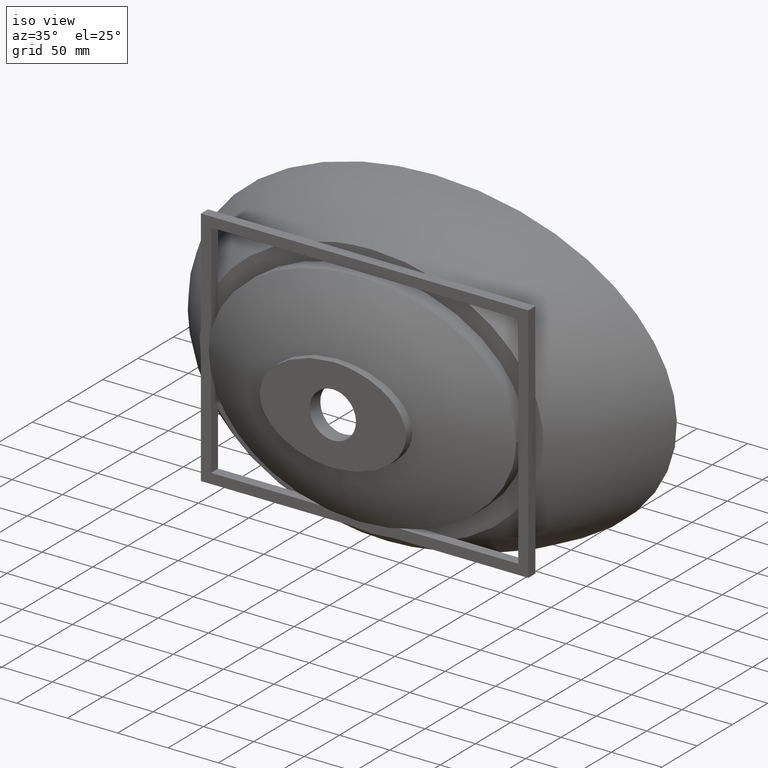
[diagram: clean part render]
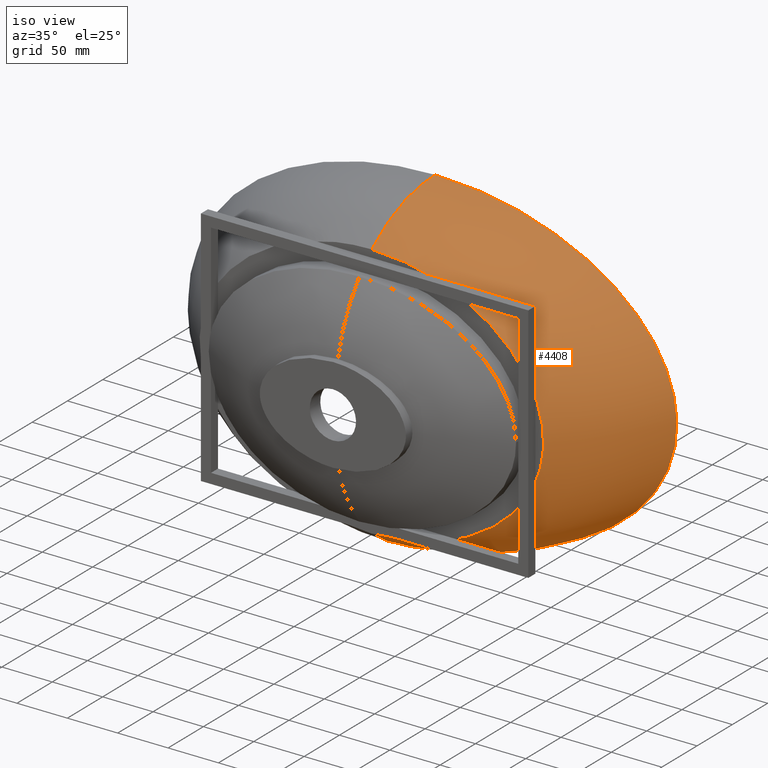
[diagram: same view with one face highlighted and labeled with its STEP entity id]
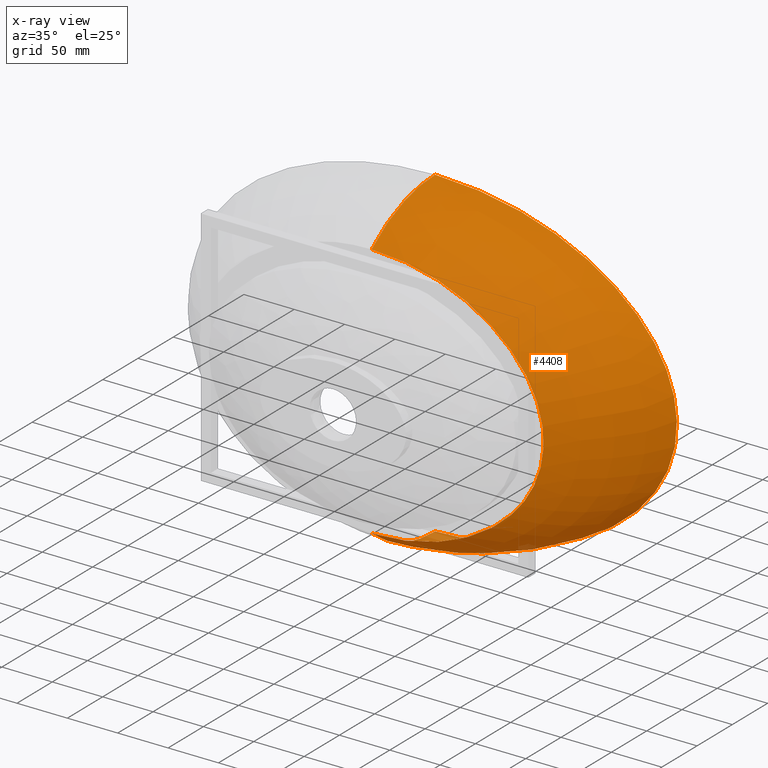
[diagram: x-ray of the same camera — body ghosted, the highlighted face saturated]
A machine part, iso view. The second image highlights one B-rep face of the part: STEP entity #4408.
The next image is the same camera in x-ray: the body ghosted, the highlighted face saturated — about 1% of this face is hidden behind the body in this view.
In plain terms, the highlighted face is a freeform B-spline surface patch.
Its self-contained STEP definition (entity closure, byte-faithful):
#2 = CARTESIAN_POINT ( 'NONE',  ( -3.118165448068310800E-013, 0.0000000000000000000, 160.0000000000000300 ) ) ;
#8 = CARTESIAN_POINT ( 'NONE',  ( -2.899156609226238900E-013, -8.027847568853541600, 160.0000000000000300 ) ) ;
#13 = CARTESIAN_POINT ( 'NONE',  ( -2.838441287567050600E-013, -24.08343298969636200, 158.6237047889792400 ) ) ;
#14 = CARTESIAN_POINT ( 'NONE',  ( 5.285723161277145400, -89.42576575512049400, 128.7942776963808200 ) ) ;
#18 = CARTESIAN_POINT ( 'NONE',  ( -2.567390744445674500E-013, -47.46391129678402600, 152.4890756055927200 ) ) ;
#24 = CARTESIAN_POINT ( 'NONE',  ( -2.101183810276907600E-013, -69.45887350837146800, 142.4642955955975500 ) ) ;
#28 = CARTESIAN_POINT ( 'NONE',  ( 170.4311516928544800, -90.00000000000000000, -8.231396301472898400 ) ) ;
#29 = CARTESIAN_POINT ( 'NONE',  ( -2.016548934993448600E-013, -83.13162945979769300, 133.1360556959620300 ) ) ;
#30 = CARTESIAN_POINT ( 'NONE',  ( -189.2390217052165700, -69.82909030074711200, -37.18540131985544400 ) ) ;
#43 = CARTESIAN_POINT ( 'NONE',  ( 169.6107089072123700, -69.75286919643458800, 71.45460550167823000 ) ) ;
#58 = CARTESIAN_POINT ( 'NONE',  ( 69.65459210872310800, -89.99999999999998600, 116.0194935529799100 ) ) ;
#60 = CARTESIAN_POINT ( 'NONE',  ( -106.7496103143514600, -47.73880436275862100, 133.3304377668824800 ) ) ;
#76 = CARTESIAN_POINT ( 'NONE',  ( 151.4428620705796800, -48.01369742873194500, -108.6578248337971400 ) ) ;
#91 = CARTESIAN_POINT ( 'NONE',  ( -2.838441287567050600E-013, -24.08343298969636200, 158.6237047889792400 ) ) ;
#109 = CARTESIAN_POINT ( 'NONE',  ( -114.7334447711980100, -24.37330946285037200, -138.8420550548668500 ) ) ;
#128 = CARTESIAN_POINT ( 'NONE',  ( 7.369015889910233600, 0.0000000000000000000, 159.9436537540059600 ) ) ;
#131 = CARTESIAN_POINT ( 'NONE',  ( 63.48448547838936000, -24.16288061567145500, 153.7742215090140700 ) ) ;
#136 = CARTESIAN_POINT ( 'NONE',  ( -1.905630791180557000E-013, -89.66503491477075700, 127.7559416656292500 ) ) ;
#146 = CARTESIAN_POINT ( 'NONE',  ( -1.899757937190942100E-013, -90.00000000000000000, 127.4774822767067400 ) ) ;
#147 = CARTESIAN_POINT ( 'NONE',  ( -230.7103964451536900, -8.533487015231676400, 42.04873613838166300 ) ) ;
#162 = CARTESIAN_POINT ( 'NONE',  ( 239.0572392791568700, -8.578102260500685400, 1.143334267076387300E-013 ) ) ;
#168 = CARTESIAN_POINT ( 'NONE',  ( -8.533165992046416900, -137.8965847384702400, 47.28351194792438900 ) ) ;
#169 = FACE_OUTER_BOUND ( 'NONE', #2094, .T. ) ;
#178 = CARTESIAN_POINT ( 'NONE',  ( -28.39700889706448100, 0.0000000000000000000, 159.2908634255087700 ) ) ;
#184 = CARTESIAN_POINT ( 'NONE',  ( 18.97892460311750500, -137.8012485572799900, -46.35087172249280500 ) ) ;
#191 = CARTESIAN_POINT ( 'NONE',  ( 63.16299334209050900, 0.0000000000000000000, -156.2435836003959400 ) ) ;
#196 = CARTESIAN_POINT ( 'NONE',  ( 0.9489462301580466900, -137.9182254667157100, 47.50000000000004300 ) ) ;
#210 = CARTESIAN_POINT ( 'NONE',  ( 137.9657682918217500, -90.00000000000000000, -74.34408651192229900 ) ) ;
#213 = CARTESIAN_POINT ( 'NONE',  ( -71.28914230992441500, -134.5297357954778500, -27.98386322658988900 ) ) ;
#229 = CARTESIAN_POINT ( 'NONE',  ( 58.13664602576464800, -135.1215378922723000, 39.53420504186164700 ) ) ;
#243 = CARTESIAN_POINT ( 'NONE',  ( -70.99896478356683400, -130.4110981200061300, 50.46160985583350100 ) ) ;
#254 = CARTESIAN_POINT ( 'NONE',  ( 158.2941051680356800, -90.00000000000001400, 47.21764709518615900 ) ) ;
#256 = CARTESIAN_POINT ( 'NONE',  ( 87.08879960701312900, -129.7512609007205200, -35.65652764456867600 ) ) ;
#267 = CARTESIAN_POINT ( 'NONE',  ( -1.643612085347038800, -121.0232837525445300, 92.48664029822909100 ) ) ;
#279 = CARTESIAN_POINT ( 'NONE',  ( 156.4517605641494000, -89.99999999999998600, 50.41318149611389300 ) ) ;
#281 = CARTESIAN_POINT ( 'NONE',  ( -32.87224170701451000, -120.8905423733262800, -90.21731109303215100 ) ) ;
#294 = CARTESIAN_POINT ( 'NONE',  ( 162.6835607642088100, -90.00000000000001400, 38.46523999543706700 ) ) ;
#296 = CARTESIAN_POINT ( 'NONE',  ( 14.77962076522658200, -120.9987265973889200, 92.05916907233033400 ) ) ;
#308 = CARTESIAN_POINT ( 'NONE',  ( 159.4485136246134700, -89.99999999999998600, 45.05471664847432600 ) ) ;
#311 = CARTESIAN_POINT ( 'NONE',  ( -152.1952100215609400, -105.0933368160461800, -4.345232165409090500E-013 ) ) ;
#323 = CARTESIAN_POINT ( 'NONE',  ( 166.4402821698804200, -90.00000000000005700, 28.09747349577578700 ) ) ;
#326 = CARTESIAN_POINT ( 'NONE',  ( 146.7260268512787000, -105.2303678472351900, 29.21443652940718400 ) ) ;
#340 = CARTESIAN_POINT ( 'NONE',  ( 164.5368786691821300, -90.00000000000007100, 33.93838683321766300 ) ) ;
#343 = CARTESIAN_POINT ( 'NONE',  ( -48.08633777947721900, -89.38336773316002800, 124.8129292021529700 ) ) ;
#359 = CARTESIAN_POINT ( 'NONE',  ( 210.3843271333237200, 0.0000000000000000000, -80.70557687257196700 ) ) ;
#362 = CARTESIAN_POINT ( 'NONE',  ( 87.00828733880054200, -89.26968767427902700, -112.5092285291048900 ) ) ;
#376 = CARTESIAN_POINT ( 'NONE',  ( 170.7162971340402500, -90.00000000000001400, -4.554447680543992400 ) ) ;
#380 = CARTESIAN_POINT ( 'NONE',  ( -1.977584762613560100E-013, -89.42628775539091600, 128.8415240831602400 ) ) ;
#395 = CARTESIAN_POINT ( 'NONE',  ( 130.6003179424817200, -90.00000000000000000, 81.36028944602564600 ) ) ;
#397 = CARTESIAN_POINT ( 'NONE',  ( -138.2728495218757400, -69.65487063374762000, -101.4004549529098700 ) ) ;
#411 = CARTESIAN_POINT ( 'NONE',  ( 137.7491413572130900, -90.00000000000002800, 74.65313767396286000 ) ) ;
#413 = CARTESIAN_POINT ( 'NONE',  ( 97.46544114901618600, -69.55687207105931700, 124.4689683782093300 ) ) ;
#427 = CARTESIAN_POINT ( 'NONE',  ( -185.7170975239326400, -48.28859049470897700, 76.56998599055874900 ) ) ;
#441 = CARTESIAN_POINT ( 'NONE',  ( 207.1208618277763900, -48.50239621268974600, -39.87137459139603400 ) ) ;
#457 = CARTESIAN_POINT ( 'NONE',  ( 132.4219208950856600, -89.99999999999998600, 79.71491311240910700 ) ) ;
#461 = CARTESIAN_POINT ( 'NONE',  ( -6.979448645039295400, -24.08439924460682800, 158.5669612895519500 ) ) ;
#475 = CARTESIAN_POINT ( 'NONE',  ( 150.4240476788266400, -90.00000000000002800, 59.75693906927544000 ) ) ;
#478 = CARTESIAN_POINT ( 'NONE',  ( -4.072932473528542400E-011, -24.05122449267978300, -160.5151547698857800 ) ) ;
#494 = CARTESIAN_POINT ( 'NONE',  ( 147.4554530371719600, -90.00000000000004300, 63.66375024643246400 ) ) ;
#497 = CARTESIAN_POINT ( 'NONE',  ( 6.979448645038701200, -24.08439924460691400, 158.5669612895521300 ) ) ;
#515 = CARTESIAN_POINT ( 'NONE',  ( -230.7103964451590900, -8.533487015232378100, -42.04873613838178400 ) ) ;
#522 = VERTEX_POINT ( 'NONE', #1125 ) ;
#531 = CARTESIAN_POINT ( 'NONE',  ( 207.0576642700741000, -8.429384776272119200, 80.62483569271090300 ) ) ;
#538 = CARTESIAN_POINT ( 'NONE',  ( -36.48783333103651900, -137.3918293742527500, 41.54905860385331100 ) ) ;
#548 = CARTESIAN_POINT ( 'NONE',  ( -121.0583653088586300, 0.0000000000000000000, 140.2562180888824300 ) ) ;
#555 = CARTESIAN_POINT ( 'NONE',  ( 51.62741250438004000, -136.8654332817920900, -33.97444197527108400 ) ) ;
#565 = CARTESIAN_POINT ( 'NONE',  ( 171.6977681166117400, 0.0000000000000000000, -114.4651787444076900 ) ) ;
#572 = CARTESIAN_POINT ( 'NONE',  ( -6.787105599759257800E-014, -136.3051420858587900, 55.36411460974161300 ) ) ;
#586 = CARTESIAN_POINT ( 'NONE',  ( 127.8008933350517400, -89.99999999999998600, 83.76715077130775500 ) ) ;
#588 = CARTESIAN_POINT ( 'NONE',  ( -41.06601692309246200, -135.7133399890606100, -48.39727505189358700 ) ) ;
#600 = CARTESIAN_POINT ( 'NONE',  ( 63.16299334163476000, 0.0000000000000000000, -156.2435836005217900 ) ) ;
#602 = CARTESIAN_POINT ( 'NONE',  ( 22.67578424893309500, -136.1429444741445400, 53.64338770039687200 ) ) ;
#614 = CARTESIAN_POINT ( 'NONE',  ( -97.28029285479031800, -129.2380541746044300, 18.55413662721871000 ) ) ;
#618 = CARTESIAN_POINT ( 'NONE',  ( -4.419585894450774800E-010, -90.00000000000002800, -127.4774822767067700 ) ) ;
#625 = CARTESIAN_POINT ( 'NONE',  ( 100.9396604802842500, -129.0181084348403100, 1.541149311286072900E-013 ) ) ;
#637 = CARTESIAN_POINT ( 'NONE',  ( -14.77962076522624500, -120.9987265973895900, 92.05916907232905500 ) ) ;
#646 = CARTESIAN_POINT ( 'NONE',  ( -4.826541853814712100E-010, -69.45887350837168100, -142.4642955955974300 ) ) ;
#651 = CARTESIAN_POINT ( 'NONE',  ( 32.87224170686118200, -120.8905423733278300, -90.21731109301782700 ) ) ;
#670 = CARTESIAN_POINT ( 'NONE',  ( 1.643612085346772600, -121.0232837525444400, 92.48664029822923300 ) ) ;
#684 = CARTESIAN_POINT ( 'NONE',  ( -131.4199673060085700, -105.5501069200093300, -56.17019793173414400 ) ) ;
#703 = CARTESIAN_POINT ( 'NONE',  ( 107.1118854178924500, -105.9612000135802400, 79.66622005956173800 ) ) ;
#718 = CARTESIAN_POINT ( 'NONE',  ( -123.4271446233035900, -89.11308759316452200, 91.64447986202891600 ) ) ;
#737 = CARTESIAN_POINT ( 'NONE',  ( 151.4264617768389200, -88.95648751205166600, -64.59020136577402100 ) ) ;
#756 = CARTESIAN_POINT ( 'NONE',  ( -2.538524743925568900, -69.45887350837145400, 142.4642955955974300 ) ) ;
#770 = CARTESIAN_POINT ( 'NONE',  ( -50.77049487858636200, -69.48065096674679400, -139.0008401419124200 ) ) ;
#783 = CARTESIAN_POINT ( 'NONE',  ( 22.82634495228795000, -69.46290233817093500, 141.8115074482859900 ) ) ;
#795 = CARTESIAN_POINT ( 'NONE',  ( 76.59422534068180300, -89.99999999999995700, -113.7462369705585300 ) ) ;
#797 = CARTESIAN_POINT ( 'NONE',  ( -214.7144640573863800, -48.59402723468225100, -4.646776901980588600E-013 ) ) ;
#814 = CARTESIAN_POINT ( 'NONE',  ( 207.1208618278014600, -48.50239621269124500, 39.87137459139498900 ) ) ;
#827 = CARTESIAN_POINT ( 'NONE',  ( 156.1368096443649700, -89.99999999999998600, -51.13004963807127000 ) ) ;
#831 = CARTESIAN_POINT ( 'NONE',  ( -63.48448547838785300, -24.16288061567069400, 153.7742215090118800 ) ) ;
#849 = CARTESIAN_POINT ( 'NONE',  ( 114.7334447711013600, -24.37330946284459200, -138.8420550548825100 ) ) ;
#867 = CARTESIAN_POINT ( 'NONE',  ( -2.838441287567050600E-013, -24.08343298969636200, 158.6237047889792400 ) ) ;
#882 = CARTESIAN_POINT ( 'NONE',  ( -168.9546456613643100, -8.295539040466877600, -114.3666063790244900 ) ) ;
#889 = CARTESIAN_POINT ( 'NONE',  ( -0.9489462301581750300, -137.9182254667157700, 47.50000000000002800 ) ) ;
#898 = CARTESIAN_POINT ( 'NONE',  ( 119.1164594631233200, -8.161693304659921800, 140.1798781103403500 ) ) ;
#904 = CARTESIAN_POINT ( 'NONE',  ( -63.29250172470200700, -136.3390371893245900, 24.08028855588262800 ) ) ;
#915 = CARTESIAN_POINT ( 'NONE',  ( -210.3843271333239800, 0.0000000000000000000, 80.70557687257186800 ) ) ;
#921 = CARTESIAN_POINT ( 'NONE',  ( 70.71629710975177800, -135.9296180062968300, -12.54543607579494200 ) ) ;
#930 = CARTESIAN_POINT ( 'NONE',  ( 234.3653754005939900, 0.0000000000000000000, -42.10866222806018300 ) ) ;
#936 = CARTESIAN_POINT ( 'NONE',  ( -2.492256223424637700, -136.3031694122029200, 55.34392454108192500 ) ) ;
#950 = CARTESIAN_POINT ( 'NONE',  ( 94.39343396965814700, -90.00000000000000000, -105.7019176069022300 ) ) ;
#953 = CARTESIAN_POINT ( 'NONE',  ( -5.367112619174164000E-011, -136.3708978743913200, -56.03711689839616400 ) ) ;
#963 = CARTESIAN_POINT ( 'NONE',  ( 100.8985350959533300, -89.99999999999998600, -102.2125545182694600 ) ) ;
#966 = CARTESIAN_POINT ( 'NONE',  ( 2.492256223424515100, -136.3031694122027200, 55.34392454108199600 ) ) ;
#980 = CARTESIAN_POINT ( 'NONE',  ( -97.28029285481471800, -129.2380541746009900, -18.55413662721829100 ) ) ;
#983 = CARTESIAN_POINT ( 'NONE',  ( 121.0583653088580300, 0.0000000000000000000, 140.2562180888825200 ) ) ;
#987 = CARTESIAN_POINT ( 'NONE',  ( 89.98995157725185800, -90.00000000000002800, -107.8421076328419900 ) ) ;
#989 = CARTESIAN_POINT ( 'NONE',  ( 87.08879960706063600, -129.7512609007141900, 35.65652764456660200 ) ) ;
#1000 = CARTESIAN_POINT ( 'NONE',  ( -63.16688283473993700, -120.4259475460681600, 80.74559428747201700 ) ) ;
#1009 = CARTESIAN_POINT ( 'NONE',  ( -5.109957533090972500E-010, -24.08343298969655100, -158.6237047889790700 ) ) ;
#1012 = CARTESIAN_POINT ( 'NONE',  ( 107.2972612407799500, -89.99999999999997200, -98.49692369994133400 ) ) ;
#1014 = CARTESIAN_POINT ( 'NONE',  ( 89.55416784918584500, -119.8286113395941900, -65.80659859689072300 ) ) ;
#1030 = CARTESIAN_POINT ( 'NONE',  ( 109.3867127180462000, -90.00000000000000000, -97.20506323372868000 ) ) ;
#1032 = CARTESIAN_POINT ( 'NONE',  ( -1.489693784995083100E-013, -106.7833862007200200, 112.0186625860387300 ) ) ;
#1042 = CARTESIAN_POINT ( 'NONE',  ( 161.8316098262854700, -90.00000000000000000, -40.17137812446738800 ) ) ;
#1044 = CARTESIAN_POINT ( 'NONE',  ( -75.52244551404919500, -106.3722931071466900, -97.79385563759191800 ) ) ;
#1056 = CARTESIAN_POINT ( 'NONE',  ( 164.6639650137578600, -89.99999999999998600, -33.34605145002329600 ) ) ;
#1058 = CARTESIAN_POINT ( 'NONE',  ( 41.72683481429382400, -106.6707162417412600, 108.5063154873593000 ) ) ;
#1072 = CARTESIAN_POINT ( 'NONE',  ( 67.41750365655461500, -89.99999999999995700, -116.9959688347342400 ) ) ;
#1074 = CARTESIAN_POINT ( 'NONE',  ( -169.0112122930850700, -88.83468744896278200, 33.59993017271398200 ) ) ;
#1079 = VERTEX_POINT ( 'NONE', #2256 ) ;
#1082 = B_SPLINE_CURVE_WITH_KNOTS ( 'NONE', 3,
 ( #3980, #4306, #128, #2528, #2653, #1370, #1553, #2035, #1537, #1489, #2493, #359, #1520, #1505, #600, #1458, #2475 ),
 .UNSPECIFIED., .F., .F.,
 ( 4, 1, 1, 1, 1, 1, 1, 1, 1, 1, 1, 1, 1, 1, 4 ),
 ( 0.0000000000000000000, 0.006250000000012277900, 0.008333333333349703800, 0.04166666666674862700, 0.08333333333349736400, 0.1250000000002460000, 0.1666666666669946200, 0.2083333333337433800, 0.2500000000004921100, 0.2916666666672407300, 0.3333333333339892300, 0.3750000000007380200, 0.4166666666674867500, 0.4583333333342352600, 0.5000000000000000000 ),
 .UNSPECIFIED. ) ;
#1090 = CARTESIAN_POINT ( 'NONE',  ( 175.2808311691002800, -88.78248742192455700, 3.827174600754757200E-013 ) ) ;
#1105 = CARTESIAN_POINT ( 'NONE',  ( -22.82634495228778300, -69.46290233817077800, 141.8115074482841500 ) ) ;
#1119 = CARTESIAN_POINT ( 'NONE',  ( 50.77049487842619900, -69.48065096674656600, -139.0008401418918400 ) ) ;
#1125 = CARTESIAN_POINT ( 'NONE',  ( -1.899757937190942100E-013, -90.00000000000000000, 127.4774822767067400 ) ) ;
#1134 = CARTESIAN_POINT ( 'NONE',  ( 2.538524743925104000, -69.45887350837148200, 142.4642955955976300 ) ) ;
#1149 = CARTESIAN_POINT ( 'NONE',  ( -185.7170975239811200, -48.28859049471153500, -76.56998599055457100 ) ) ;
#1164 = CARTESIAN_POINT ( 'NONE',  ( 151.4428620706492800, -48.01369742873544800, 108.6578248337891500 ) ) ;
#1169 = EDGE_CURVE ( 'NONE', #522, #3704, #1814, .T. ) ;
#1179 = CARTESIAN_POINT ( 'NONE',  ( -162.7552536072520000, -24.66318593599745100, 113.2137010850541500 ) ) ;
#1200 = CARTESIAN_POINT ( 'NONE',  ( 199.5200360855156400, -24.95306240914736800, -79.79432093874477500 ) ) ;
#1218 = CARTESIAN_POINT ( 'NONE',  ( -3.106776086413216100, -8.027847568853532700, 160.0000000000000000 ) ) ;
#1232 = CARTESIAN_POINT ( 'NONE',  ( -62.13552172827155600, -8.057591065699510200, -156.2220122721521100 ) ) ;
#1249 = CARTESIAN_POINT ( 'NONE',  ( 27.93521185774869100, -8.033350115770094400, 159.2869763847762400 ) ) ;
#1256 = CARTESIAN_POINT ( 'NONE',  ( -73.39185144511787900, -135.7541526421405800, -4.788306857052501700E-014 ) ) ;
#1266 = CARTESIAN_POINT ( 'NONE',  ( -242.8173122997031900, 0.0000000000000000000, -2.002860225759628400E-013 ) ) ;
#1272 = CARTESIAN_POINT ( 'NONE',  ( 70.71629710976908700, -135.9296180062940800, 12.54543607579493500 ) ) ;
#1281 = CARTESIAN_POINT ( 'NONE',  ( 234.3653754005939900, 0.0000000000000000000, 42.10866222806029700 ) ) ;
#1287 = CARTESIAN_POINT ( 'NONE',  ( -22.67578424893059700, -136.1429444741461600, 53.64338770039621800 ) ) ;
#1304 = CARTESIAN_POINT ( 'NONE',  ( 41.06601692296488400, -135.7133399890723000, -48.39727505189825500 ) ) ;
#1316 = CARTESIAN_POINT ( 'NONE',  ( -6.787105599759257800E-014, -136.3051420858587900, 55.36411460974161300 ) ) ;
#1328 = CARTESIAN_POINT ( 'NONE',  ( -70.99896478363457700, -130.4110981199980900, -50.46160985582977800 ) ) ;
#1339 = CARTESIAN_POINT ( 'NONE',  ( 50.11308030761455300, -131.0709353392908000, 61.85547751216748200 ) ) ;
#1349 = EDGE_CURVE ( 'NONE', #3908, #1079, #1082, .T. ) ;
#1358 = CARTESIAN_POINT ( 'NONE',  ( -109.8728244646667600, -119.2312751331129900, 46.43324133557974400 ) ) ;
#1367 = CARTESIAN_POINT ( 'NONE',  ( -4.971068145928711400E-010, 0.0000000000000000000, -160.0000000000000300 ) ) ;
#1370 = CARTESIAN_POINT ( 'NONE',  ( 121.0583653088580300, 0.0000000000000000000, 140.2562180888825200 ) ) ;
#1373 = CARTESIAN_POINT ( 'NONE',  ( 122.7013997009552900, -118.7666803058522500, -24.15165268842176300 ) ) ;
#1377 = B_SPLINE_CURVE_WITH_KNOTS ( 'NONE', 3,
 ( #2439, #4538, #2782, #646, #3142, #1009, #3509, #1367 ),
 .UNSPECIFIED., .F., .F.,
 ( 4, 1, 1, 1, 1, 4 ),
 ( 0.5814143982005298700, 0.5870165571922979500, 0.6902624178942237100, 0.7935082785961490300, 0.8967541392980744600, 1.000000000000000000 ),
 .UNSPECIFIED. ) ;
#1388 = CARTESIAN_POINT ( 'NONE',  ( 103.0544678219113900, -89.99999999999994300, -101.0000953123723500 ) ) ;
#1389 = CARTESIAN_POINT ( 'NONE',  ( -4.586500639170422400, -106.7820158904081900, 111.9774550151116000 ) ) ;
#1403 = CARTESIAN_POINT ( 'NONE',  ( -8.959173947852567700E-011, -106.8290632111167500, -113.3922482836024400 ) ) ;
#1424 = CARTESIAN_POINT ( 'NONE',  ( 4.586500639170145300, -106.7820158904080600, 111.9774550151120300 ) ) ;
#1442 = CARTESIAN_POINT ( 'NONE',  ( -169.0112122931186900, -88.83468744896195800, -33.59993017271287400 ) ) ;
#1458 = CARTESIAN_POINT ( 'NONE',  ( 21.05433111353306300, 0.0000000000000000000, -160.0000000000443700 ) ) ;
#1461 = CARTESIAN_POINT ( 'NONE',  ( 151.4264617769043200, -88.95648751205017400, 64.59020136576853600 ) ) ;
#1473 = CARTESIAN_POINT ( 'NONE',  ( 124.9457662793537100, -90.00000000000000000, 86.12314433150328300 ) ) ;
#1475 = CARTESIAN_POINT ( 'NONE',  ( -97.46544114900257200, -69.55687207105882000, 124.4689683782017400 ) ) ;
#1489 = CARTESIAN_POINT ( 'NONE',  ( 242.8173122997031600, 0.0000000000000000000, 5.145555747980423700E-014 ) ) ;
#1491 = CARTESIAN_POINT ( 'NONE',  ( 138.2728495217273000, -69.65487063374590100, -101.4004549529382500 ) ) ;
#1505 = CARTESIAN_POINT ( 'NONE',  ( 121.0583653088582000, 0.0000000000000000000, -140.2562180888824300 ) ) ;
#1507 = CARTESIAN_POINT ( 'NONE',  ( -2.567390744445674500E-013, -47.46391129678402600, 152.4890756055927200 ) ) ;
#1520 = CARTESIAN_POINT ( 'NONE',  ( 171.6977681166117400, 0.0000000000000000000, -114.4651787444076900 ) ) ;
#1522 = CARTESIAN_POINT ( 'NONE',  ( -106.7496103144373200, -47.73880436276185400, -133.3304377668731300 ) ) ;
#1537 = CARTESIAN_POINT ( 'NONE',  ( 234.3653754005939900, 0.0000000000000000000, 42.10866222806029700 ) ) ;
#1540 = CARTESIAN_POINT ( 'NONE',  ( 59.03941320780381800, -47.53925235931097900, 147.7797726746908900 ) ) ;
#1553 = CARTESIAN_POINT ( 'NONE',  ( 171.6977681166116300, 0.0000000000000000000, 114.4651787444077900 ) ) ;
#1557 = CARTESIAN_POINT ( 'NONE',  ( -222.4020325332716900, -25.17852188826611500, 41.58481015626988900 ) ) ;
#1576 = CARTESIAN_POINT ( 'NONE',  ( 230.4958984084491100, -25.27514737931698400, 2.227419304035392200E-013 ) ) ;
#1593 = CARTESIAN_POINT ( 'NONE',  ( -27.93521185774920900, -8.033350115769931000, 159.2869763847759000 ) ) ;
#1607 = CARTESIAN_POINT ( 'NONE',  ( 62.13552172824329000, -8.057591065699160300, -156.2220122721480800 ) ) ;
#1623 = CARTESIAN_POINT ( 'NONE',  ( 3.106776086412581500, -8.027847568853550400, 160.0000000000000600 ) ) ;
#1630 = CARTESIAN_POINT ( 'NONE',  ( -63.29250172473563700, -136.3390371893195300, -24.08028855588252200 ) ) ;
#1639 = CARTESIAN_POINT ( 'NONE',  ( -210.3843271333236400, 0.0000000000000000000, -80.70557687257218000 ) ) ;
#1646 = CARTESIAN_POINT ( 'NONE',  ( 51.62741250442815000, -136.8654332817856400, 33.97444197527090600 ) ) ;
#1655 = CARTESIAN_POINT ( 'NONE',  ( 171.6977681166116300, 0.0000000000000000000, 114.4651787444077900 ) ) ;
#1663 = CARTESIAN_POINT ( 'NONE',  ( -58.13664602574939300, -135.1215378922759100, 39.53420504186014000 ) ) ;
#1677 = CARTESIAN_POINT ( 'NONE',  ( 71.28914230986605100, -134.5297357954856400, -27.98386322659295900 ) ) ;
#1688 = CARTESIAN_POINT ( 'NONE',  ( -1.303626300673869500, -131.7307725585804700, 70.81568912956842600 ) ) ;
#1704 = CARTESIAN_POINT ( 'NONE',  ( -26.07252601353809900, -131.5841420654045100, -69.08361680542651600 ) ) ;
#1715 = CARTESIAN_POINT ( 'NONE',  ( 11.72247684746733000, -131.7036459173426100, 70.48942631880810000 ) ) ;
#1728 = CARTESIAN_POINT ( 'NONE',  ( -127.2955996637738300, -118.5675682370248200, -3.342661045710649100E-013 ) ) ;
#1743 = CARTESIAN_POINT ( 'NONE',  ( 122.7013997009851100, -118.7666803058491800, 24.15165268842087800 ) ) ;
#1758 = CARTESIAN_POINT ( 'NONE',  ( -41.72683481428971700, -106.6707162417423000, 108.5063154873553700 ) ) ;
#1771 = CARTESIAN_POINT ( 'NONE',  ( 75.52244551383628800, -106.3722931071549500, -97.79385563761982800 ) ) ;
#1788 = CARTESIAN_POINT ( 'NONE',  ( -1.489693784995083100E-013, -106.7833862007200200, 112.0186625860387300 ) ) ;
#1807 = CARTESIAN_POINT ( 'NONE',  ( -123.4271446233968600, -89.11308759316260400, -91.64447986201942300 ) ) ;
#1814 = B_SPLINE_CURVE_WITH_KNOTS ( 'NONE', 3,
 ( #4025, #3995, #3931, #3948, #3892, #3915, #3788, #3714, #3662, #3676, #3635, #3651, #3825, #3814, #58, #3603, #3849, #3120, #3109, #3694, #3802, #3494, #3524, #4381, #1473, #4370, #586, #395, #457, #411, #1941, #494, #475, #4398, #2389, #2845, #279, #254, #308, #294, #340, #323, #3131, #4520, #4558, #4574, #4589, #4606, #4628, #3082, #376, #28, #3964, #3097, #2575, #3539, #2147, #3358, #1056, #4043, #1042, #3458, #827, #2216, #2128, #2049, #2167, #210, #4352, #2025, #2982, #1030, #1012, #1388, #963, #950, #987, #795, #1072, #4335, #3471, #2074, #2114, #1920, #4416, #1860, #2998, #3230, #4273, #4254 ),
 .UNSPECIFIED., .F., .F.,
 ( 4, 2, 2, 2, 2, 2, 2, 2, 2, 2, 2, 2, 2, 2, 2, 2, 2, 2, 2, 2, 2, 2, 2, 2, 2, 2, 2, 2, 2, 2, 2, 2, 2, 2, 2, 2, 2, 2, 2, 2, 2, 2, 2, 2, 4 ),
 ( 0.0000000000000000000, 0.01461603869235157500, 0.02923207738470315000, 0.04384811607705472300, 0.05846415476940630000, 0.06211816444249418400, 0.06577217411558206100, 0.07308019346175780000, 0.08769623215410932100, 0.1023122708464608400, 0.1169283095388123800, 0.1315443482311638700, 0.1351983579042517200, 0.1388523675773395700, 0.1461603869235152100, 0.1607764256158665000, 0.1753924643082178100, 0.1790464739813056300, 0.1827004836543934500, 0.1900085030005691200, 0.2046245416929204600, 0.2082785513660083100, 0.2119325610390961600, 0.2192405803852718600, 0.2338566190776231700, 0.2411646384237989000, 0.2448186480968866900, 0.2484726577699745400, 0.2630886964623259100, 0.2703967158085016100, 0.2777047351546773100, 0.2923207738470286500, 0.3069368125393800400, 0.3142448318855557400, 0.3215528512317313800, 0.3507849286164340700, 0.3580929479626097600, 0.3654009673087854600, 0.3800170060011368000, 0.4092490833858396000, 0.4238651220781909900, 0.4311731414243666900, 0.4384811607705423900, 0.4530971994628937800, 0.4677132381552451300 ),
 .UNSPECIFIED. ) ;
#1827 = CARTESIAN_POINT ( 'NONE',  ( 87.00828733891638900, -89.26968767427709400, 112.5092285290931100 ) ) ;
#1844 = CARTESIAN_POINT ( 'NONE',  ( -169.6107089071827500, -69.75286919643393400, 71.45460550166852400 ) ) ;
#1860 = CARTESIAN_POINT ( 'NONE',  ( 24.33390993132695700, -89.99999999999997200, -126.1623314209202800 ) ) ;
#1862 = CARTESIAN_POINT ( 'NONE',  ( 189.2390217051790300, -69.82909030074660000, -37.18540131986478100 ) ) ;
#1879 = CARTESIAN_POINT ( 'NONE',  ( -6.490346565022594700, -47.46482760700389700, 152.4339174918873700 ) ) ;
#1896 = CARTESIAN_POINT ( 'NONE',  ( -6.791038784834732300E-011, -47.43336762278661900, -154.3276793957661300 ) ) ;
#1909 = CARTESIAN_POINT ( 'NONE',  ( 6.490346565022073300, -47.46482760700399000, 152.4339174918877700 ) ) ;
#1920 = CARTESIAN_POINT ( 'NONE',  ( 34.04386707468042800, -89.99999999999994300, -124.8105695512882800 ) ) ;
#1923 = CARTESIAN_POINT ( 'NONE',  ( -222.4020325332866200, -25.17852188826768500, -41.58481015626956200 ) ) ;
#1941 = CARTESIAN_POINT ( 'NONE',  ( 141.1179320181729500, -90.00000000000008500, 71.11178758032252700 ) ) ;
#1944 = CARTESIAN_POINT ( 'NONE',  ( 199.5200360855448600, -24.95306240915007100, 79.79432093874210400 ) ) ;
#1959 = CARTESIAN_POINT ( 'NONE',  ( -119.1164594631214600, -8.161693304659273500, 140.1798781103388500 ) ) ;
#1976 = CARTESIAN_POINT ( 'NONE',  ( 168.9546456613379300, -8.295539040464426300, -114.3666063790296900 ) ) ;
#1988 = CARTESIAN_POINT ( 'NONE',  ( -3.118165448068310800E-013, 0.0000000000000000000, 160.0000000000000300 ) ) ;
#1993 = CARTESIAN_POINT ( 'NONE',  ( -36.48783333109606300, -137.3918293742463000, -41.54905860385294900 ) ) ;
#2003 = CARTESIAN_POINT ( 'NONE',  ( -121.0583653088579400, 0.0000000000000000000, -140.2562180888824900 ) ) ;
#2011 = CARTESIAN_POINT ( 'NONE',  ( 20.14618518502174600, -137.7739539450767000, 46.03075084791724000 ) ) ;
#2025 = CARTESIAN_POINT ( 'NONE',  ( 127.3727459352117500, -90.00000000000001400, -84.54573433927029700 ) ) ;
#2027 = CARTESIAN_POINT ( 'NONE',  ( -79.64383155769812100, -134.0694452757556400, 14.57139081790737800 ) ) ;
#2035 = CARTESIAN_POINT ( 'NONE',  ( 210.3843271333236900, 0.0000000000000000000, 80.70557687257205300 ) ) ;
#2037 = CARTESIAN_POINT ( 'NONE',  ( 82.65044662213577500, -133.8721779101567200, 5.782606465924474100E-014 ) ) ;
#2049 = CARTESIAN_POINT ( 'NONE',  ( 143.0035293188381600, -89.99999999999998600, -68.90828369747757200 ) ) ;
#2051 = CARTESIAN_POINT ( 'NONE',  ( -11.72247684746702800, -131.7036459173433200, 70.48942631880737500 ) ) ;
#2066 = CARTESIAN_POINT ( 'NONE',  ( 26.07252601341241100, -131.5841420654062700, -69.08361680541841600 ) ) ;
#2074 = CARTESIAN_POINT ( 'NONE',  ( 41.32163735656278200, -89.99999999999995700, -123.5359256542981300 ) ) ;
#2076 = CARTESIAN_POINT ( 'NONE',  ( 1.303626300673676600, -131.7307725585803800, 70.81568912956852600 ) ) ;
#2089 = CARTESIAN_POINT ( 'NONE',  ( -109.8728244647245600, -119.2312751331071500, -46.43324133557612000 ) ) ;
#2094 = EDGE_LOOP ( 'NONE', ( #2141, #3178, #2368, #3302 ) ) ;
#2101 = CARTESIAN_POINT ( 'NONE',  ( 89.55416784926858000, -119.8286113395870300, 65.80659859688417200 ) ) ;
#2105 = B_SPLINE_CURVE_WITH_KNOTS ( 'NONE', 3,
 ( #146, #136, #29, #24, #18, #13, #8, #2 ),
 .UNSPECIFIED., .F., .F.,
 ( 4, 1, 1, 1, 1, 4 ),
 ( 0.5814143982005297600, 0.5870165571922979500, 0.6902624178942237100, 0.7935082785961490300, 0.8967541392980744600, 1.000000000000000000 ),
 .UNSPECIFIED. ) ;
#2114 = CARTESIAN_POINT ( 'NONE',  ( 38.89468623390836700, -89.99999999999997200, -123.9892038857529300 ) ) ;
#2116 = CARTESIAN_POINT ( 'NONE',  ( -107.1118854178669700, -105.9612000135825600, 79.66622005955291300 ) ) ;
#2118 = CARTESIAN_POINT ( 'NONE',  ( 7.369015889910233600, 0.0000000000000000000, 159.9436537540059600 ) ) ;
#2128 = CARTESIAN_POINT ( 'NONE',  ( 147.7809434345033100, -90.00000000000001400, -63.25219294242409500 ) ) ;
#2131 = CARTESIAN_POINT ( 'NONE',  ( 131.4199673059112300, -105.5501069200149500, -56.17019793175262500 ) ) ;
#2141 = ORIENTED_EDGE ( 'NONE', *, *, #1169, .T. ) ;
#2147 = CARTESIAN_POINT ( 'NONE',  ( 167.7327472500377900, -90.00000000000004300, -24.03229955516148300 ) ) ;
#2149 = CARTESIAN_POINT ( 'NONE',  ( -2.265309926261944300, -89.42628775539093100, 128.8415240831601200 ) ) ;
#2167 = CARTESIAN_POINT ( 'NONE',  ( 141.3495492439844600, -90.00000000000000000, -70.75792276946391700 ) ) ;
#2169 = CARTESIAN_POINT ( 'NONE',  ( -45.30619852532076700, -89.39148773736548000, -125.6917649645276100 ) ) ;
#2186 = CARTESIAN_POINT ( 'NONE',  ( 20.36976878779773500, -89.41984975205613800, 128.2480267486112700 ) ) ;
#2202 = CARTESIAN_POINT ( 'NONE',  ( -196.2209030284833200, -69.86175648830931100, -5.031984563063593900E-013 ) ) ;
#2216 = CARTESIAN_POINT ( 'NONE',  ( 150.7346086960583000, -90.00000000000001400, -59.32522569045524800 ) ) ;
#2218 = CARTESIAN_POINT ( 'NONE',  ( 189.2390217052102100, -69.82909030074708300, 37.18540131986353000 ) ) ;
#2233 = CARTESIAN_POINT ( 'NONE',  ( -59.03941320780100500, -47.53925235931019000, 147.7797726746873400 ) ) ;
#2239 = EDGE_CURVE ( 'NONE', #522, #3908, #2105, .T. ) ;
#2247 = CARTESIAN_POINT ( 'NONE',  ( 106.7496103142757600, -47.73880436275647600, -133.3304377668985700 ) ) ;
#2256 = CARTESIAN_POINT ( 'NONE',  ( -4.971068145928711400E-010, 0.0000000000000000000, -160.0000000000000300 ) ) ;
#2266 = CARTESIAN_POINT ( 'NONE',  ( -2.567390744445674500E-013, -47.46391129678402600, 152.4890756055927200 ) ) ;
#2283 = CARTESIAN_POINT ( 'NONE',  ( -162.7552536072934400, -24.66318593600112400, -113.2137010850494600 ) ) ;
#2299 = CARTESIAN_POINT ( 'NONE',  ( 114.7334447711530900, -24.37330946284798500, 138.8420550548767700 ) ) ;
#2314 = CARTESIAN_POINT ( 'NONE',  ( -207.0576642700692700, -8.429384776271293200, 80.62483569270891300 ) ) ;
#2329 = CARTESIAN_POINT ( 'NONE',  ( 230.7103964451522400, -8.533487015231562700, -42.04873613838335400 ) ) ;
#2335 = EDGE_CURVE ( 'NONE', #3704, #1079, #1377, .T. ) ;
#2337 = CARTESIAN_POINT ( 'NONE',  ( -2.214207870368963600, -137.9164708130742600, 47.48276307583741800 ) ) ;
#2345 = CARTESIAN_POINT ( 'NONE',  ( -7.369015889910913900, 0.0000000000000000000, 159.9436537540059900 ) ) ;
#2351 = CARTESIAN_POINT ( 'NONE',  ( -4.695474878991189100E-011, -137.9767139214340500, -48.07456413875336700 ) ) ;
#2361 = CARTESIAN_POINT ( 'NONE',  ( 1.560538379932513900E-013, 0.0000000000000000000, -161.8782081998020300 ) ) ;
#2366 = CARTESIAN_POINT ( 'NONE',  ( 2.214207870368864600, -137.9164708130741100, 47.48276307583743300 ) ) ;
#2368 = ORIENTED_EDGE ( 'NONE', *, *, #1349, .F. ) ;
#2380 = CARTESIAN_POINT ( 'NONE',  ( -79.64383155771788800, -134.0694452757525400, -14.57139081790726300 ) ) ;
#2389 = CARTESIAN_POINT ( 'NONE',  ( 154.5175184915517500, -89.99999999999995700, 53.56816546685171000 ) ) ;
#2391 = CARTESIAN_POINT ( 'NONE',  ( 71.28914230990453400, -134.5297357954799500, 27.98386322659216300 ) ) ;
#2405 = CARTESIAN_POINT ( 'NONE',  ( -50.11308030760389400, -131.0709353392938100, 61.85547751216449100 ) ) ;
#2418 = CARTESIAN_POINT ( 'NONE',  ( 70.99896478351779200, -130.4110981200103900, -50.46160985584097600 ) ) ;
#2431 = CARTESIAN_POINT ( 'NONE',  ( -1.186117176699141900E-013, -121.0232837525444900, 92.48664029822916200 ) ) ;
#2439 = CARTESIAN_POINT ( 'NONE',  ( -4.419585894450774800E-010, -90.00000000000002800, -127.4774822767067700 ) ) ;
#2443 = CARTESIAN_POINT ( 'NONE',  ( -63.16688283484232600, -120.4259475460607100, -80.74559428746403000 ) ) ;
#2458 = CARTESIAN_POINT ( 'NONE',  ( 34.89188444879368900, -120.8595693848423300, 89.58586330598979000 ) ) ;
#2475 = CARTESIAN_POINT ( 'NONE',  ( -4.971068145928711400E-010, 0.0000000000000000000, -160.0000000000000300 ) ) ;
#2477 = CARTESIAN_POINT ( 'NONE',  ( -146.7260268512530700, -105.2303678472367500, 29.21443652940079600 ) ) ;
#2479 = CARTESIAN_POINT ( 'NONE',  ( -3.118165448068310800E-013, 0.0000000000000000000, 160.0000000000000300 ) ) ;
#2493 = CARTESIAN_POINT ( 'NONE',  ( 234.3653754005939900, 0.0000000000000000000, -42.10866222806018300 ) ) ;
#2496 = CARTESIAN_POINT ( 'NONE',  ( 152.1952100215644900, -105.0933368160462200, 3.458370158819938800E-013 ) ) ;
#2511 = CARTESIAN_POINT ( 'NONE',  ( -20.36976878779749400, -89.41984975205630800, 128.2480267486094500 ) ) ;
#2528 = CARTESIAN_POINT ( 'NONE',  ( 28.39700889706379900, 0.0000000000000000000, 159.2908634255087500 ) ) ;
#2530 = CARTESIAN_POINT ( 'NONE',  ( 45.30619852514755100, -89.39148773736587800, -125.6917649645066000 ) ) ;
#2548 = CARTESIAN_POINT ( 'NONE',  ( 2.265309926261509100, -89.42628775539091600, 128.8415240831603200 ) ) ;
#2564 = CARTESIAN_POINT ( 'NONE',  ( -169.6107089072430700, -69.75286919643492900, -71.45460550166332300 ) ) ;
#2575 = CARTESIAN_POINT ( 'NONE',  ( 169.8507938051765500, -89.99999999999997200, -13.14711010107172100 ) ) ;
#2577 = CARTESIAN_POINT ( 'NONE',  ( 138.2728495218137300, -69.65487063374698100, 101.4004549529289000 ) ) ;
#2592 = CARTESIAN_POINT ( 'NONE',  ( -151.4428620706304100, -48.01369742873370700, 108.6578248337810600 ) ) ;
#2609 = CARTESIAN_POINT ( 'NONE',  ( 185.7170975239070000, -48.28859049470798900, -76.56998599057141100 ) ) ;
#2625 = CARTESIAN_POINT ( 'NONE',  ( -2.991192276445610700, -24.08343298969634100, 158.6237047889791800 ) ) ;
#2639 = CARTESIAN_POINT ( 'NONE',  ( -59.82384552894409800, -24.14784998373049200, -154.8408048271709000 ) ) ;
#2653 = CARTESIAN_POINT ( 'NONE',  ( 67.02268480654146300, 0.0000000000000000000, 155.1777592329617300 ) ) ;
#2656 = CARTESIAN_POINT ( 'NONE',  ( 26.89615925657407300, -24.09535013359273500, 157.9100752965144600 ) ) ;
#2670 = CARTESIAN_POINT ( 'NONE',  ( -239.0572392791564500, -8.578102260500623200, -2.616985352727468300E-013 ) ) ;
#2685 = CARTESIAN_POINT ( 'NONE',  ( 230.7103964451578100, -8.533487015232266200, 42.04873613838321900 ) ) ;
#2691 = CARTESIAN_POINT ( 'NONE',  ( -20.14618518501955800, -137.7739539450780900, 46.03075084791711900 ) ) ;
#2698 = CARTESIAN_POINT ( 'NONE',  ( -67.02268480654207400, 0.0000000000000000000, 155.1777592329617600 ) ) ;
#2705 = CARTESIAN_POINT ( 'NONE',  ( 36.48783333098445100, -137.3918293742567300, -41.54905860385374400 ) ) ;
#2713 = CARTESIAN_POINT ( 'NONE',  ( 121.0583653088582000, 0.0000000000000000000, -140.2562180888824300 ) ) ;
#2721 = CARTESIAN_POINT ( 'NONE',  ( -5.567378155713065300E-014, -137.9182254667157400, 47.50000000000003600 ) ) ;
#2732 = CARTESIAN_POINT ( 'NONE',  ( -58.13664602580430300, -135.1215378922686300, -39.53420504185871200 ) ) ;
#2743 = CARTESIAN_POINT ( 'NONE',  ( 41.06601692303303300, -135.7133399890650500, 48.39727505189656400 ) ) ;
#2754 = CARTESIAN_POINT ( 'NONE',  ( -87.08879960703775700, -129.7512609007179900, 35.65652764456277200 ) ) ;
#2764 = CARTESIAN_POINT ( 'NONE',  ( 97.28029285478467600, -129.2380541746052200, -18.55413662722196800 ) ) ;
#2773 = CARTESIAN_POINT ( 'NONE',  ( -3.835094865809535400, -121.0212926318563100, 92.45260036015093900 ) ) ;
#2782 = CARTESIAN_POINT ( 'NONE',  ( -4.578105056747309400E-010, -83.13162945979773600, -133.1360556959620600 ) ) ;
#2786 = CARTESIAN_POINT ( 'NONE',  ( -8.077729046506892600E-011, -121.0896544421529900, -93.62130490083126200 ) ) ;
#2800 = CARTESIAN_POINT ( 'NONE',  ( 3.835094865809319100, -121.0212926318561300, 92.45260036015125100 ) ) ;
#2815 = CARTESIAN_POINT ( 'NONE',  ( -146.7260268512860900, -105.2303678472346000, -29.21443652939978000 ) ) ;
#2831 = CARTESIAN_POINT ( 'NONE',  ( 131.4199673059754600, -105.5501069200109600, 56.17019793174776500 ) ) ;
#2845 = CARTESIAN_POINT ( 'NONE',  ( 155.8191793641709600, -89.99999999999995700, 51.47021122569489600 ) ) ;
#2847 = CARTESIAN_POINT ( 'NONE',  ( -87.00828733890190800, -89.26968767427784700, 112.5092285290854100 ) ) ;
#2869 = CARTESIAN_POINT ( 'NONE',  ( 123.4271446232358500, -89.11308759316548800, -91.64447986204842800 ) ) ;
#2887 = CARTESIAN_POINT ( 'NONE',  ( -2.101183810276907600E-013, -69.45887350837146800, 142.4642955955975500 ) ) ;
#2903 = CARTESIAN_POINT ( 'NONE',  ( -97.46544114910942400, -69.55687207106015500, -124.4689683781901600 ) ) ;
#2919 = CARTESIAN_POINT ( 'NONE',  ( 53.88349129654184800, -69.48573237370082700, 138.0320486909912200 ) ) ;
#2933 = CARTESIAN_POINT ( 'NONE',  ( -207.1208618277825600, -48.50239621268997300, 39.87137459138906300 ) ) ;
#2951 = CARTESIAN_POINT ( 'NONE',  ( 214.7144640573885700, -48.59402723468242900, 3.350477051440627600E-013 ) ) ;
#2967 = CARTESIAN_POINT ( 'NONE',  ( -26.89615925657437900, -24.09535013359240100, 157.9100752965135500 ) ) ;
#2982 = CARTESIAN_POINT ( 'NONE',  ( 119.6698321239669400, -89.99999999999998600, -90.53882544140859100 ) ) ;
#2985 = CARTESIAN_POINT ( 'NONE',  ( 59.82384552886682600, -24.14784998372968900, -154.8408048271602700 ) ) ;
#2998 = CARTESIAN_POINT ( 'NONE',  ( 19.47365140592236800, -90.00000000000000000, -126.6535341936730400 ) ) ;
#3001 = CARTESIAN_POINT ( 'NONE',  ( 2.991192276444990300, -24.08343298969638000, 158.6237047889792700 ) ) ;
#3017 = CARTESIAN_POINT ( 'NONE',  ( -207.0576642700797000, -8.429384776272582900, -80.62483569270820300 ) ) ;
#3035 = CARTESIAN_POINT ( 'NONE',  ( 168.9546456613531700, -8.295539040466064100, 114.3666063790280000 ) ) ;
#3041 = CARTESIAN_POINT ( 'NONE',  ( -51.62741250441481400, -136.8654332817888500, 33.97444197527062200 ) ) ;
#3050 = CARTESIAN_POINT ( 'NONE',  ( -171.6977681166120800, 0.0000000000000000000, 114.4651787444076200 ) ) ;
#3056 = CARTESIAN_POINT ( 'NONE',  ( 63.29250172468453400, -136.3390371893264600, -24.08028855588301600 ) ) ;
#3065 = CARTESIAN_POINT ( 'NONE',  ( 210.3843271333237200, 0.0000000000000000000, -80.70557687257196700 ) ) ;
#3070 = CARTESIAN_POINT ( 'NONE',  ( -1.068109810039187000, -136.3051420858588200, 55.36411460974159100 ) ) ;
#3082 = CARTESIAN_POINT ( 'NONE',  ( 170.8068563909143900, -90.00000000000001400, -2.108736446687335500 ) ) ;
#3084 = CARTESIAN_POINT ( 'NONE',  ( -21.36219620083297200, -136.1736305087930800, -54.01811003243381700 ) ) ;
#3097 = CARTESIAN_POINT ( 'NONE',  ( 170.0212186873357000, -90.00000000000001400, -11.91535024561035200 ) ) ;
#3099 = CARTESIAN_POINT ( 'NONE',  ( 9.604696412959372200, -136.2808124441014000, 55.11055466813974100 ) ) ;
#3109 = CARTESIAN_POINT ( 'NONE',  ( 94.26627151204770900, -90.00000000000000000, 105.7632188328186900 ) ) ;
#3111 = CARTESIAN_POINT ( 'NONE',  ( -100.9396604802817600, -129.0181084348404300, -2.010492465576613800E-013 ) ) ;
#3120 = CARTESIAN_POINT ( 'NONE',  ( 89.91747191647299100, -89.99999999999997200, 107.8751688126572200 ) ) ;
#3122 = CARTESIAN_POINT ( 'NONE',  ( 97.28029285480910500, -129.2380541746017300, 18.55413662722148500 ) ) ;
#3131 = CARTESIAN_POINT ( 'NONE',  ( 166.8002363667276900, -90.00000000000002800, 26.92014510711990000 ) ) ;
#3134 = CARTESIAN_POINT ( 'NONE',  ( -34.89188444878995200, -120.8595693848439900, 89.58586330598677700 ) ) ;
#3142 = CARTESIAN_POINT ( 'NONE',  ( -5.047246068832938300E-010, -47.46391129678387000, -152.4890756055930600 ) ) ;
#3146 = CARTESIAN_POINT ( 'NONE',  ( 63.16688283465034500, -120.4259475460724200, -80.74559428748530400 ) ) ;
#3164 = CARTESIAN_POINT ( 'NONE',  ( -1.186117176699141900E-013, -121.0232837525444900, 92.48664029822916200 ) ) ;
#3178 = ORIENTED_EDGE ( 'NONE', *, *, #2335, .T. ) ;
#3180 = CARTESIAN_POINT ( 'NONE',  ( -107.1118854179586000, -105.9612000135776000, -79.66622005954434400 ) ) ;
#3198 = CARTESIAN_POINT ( 'NONE',  ( 75.52244551395006100, -106.3722931071498200, 97.79385563760942500 ) ) ;
#3215 = CARTESIAN_POINT ( 'NONE',  ( -151.4264617768730500, -88.95648751205112600, 64.59020136575864500 ) ) ;
#3230 = CARTESIAN_POINT ( 'NONE',  ( 9.743847612547018100, -90.00000000000001400, -127.3111151976997500 ) ) ;
#3232 = CARTESIAN_POINT ( 'NONE',  ( 169.0112122930771400, -88.83468744896288200, -33.59993017272242400 ) ) ;
#3249 = CARTESIAN_POINT ( 'NONE',  ( -5.923224402492627900, -69.45920017024708700, 142.4123437637918500 ) ) ;
#3266 = CARTESIAN_POINT ( 'NONE',  ( -8.440555434939220000E-011, -69.44798477918416800, -144.1960233224450600 ) ) ;
#3282 = CARTESIAN_POINT ( 'NONE',  ( 5.923224402492214000, -69.45920017024711500, 142.4123437637923400 ) ) ;
#3297 = CARTESIAN_POINT ( 'NONE',  ( -207.1208618278075200, -48.50239621269136600, -39.87137459138829600 ) ) ;
#3302 = ORIENTED_EDGE ( 'NONE', *, *, #2239, .F. ) ;
#3315 = CARTESIAN_POINT ( 'NONE',  ( 185.7170975239556900, -48.28859049471073200, 76.56998599056689200 ) ) ;
#3329 = CARTESIAN_POINT ( 'NONE',  ( -114.7334447711467600, -24.37330946284667000, 138.8420550548728700 ) ) ;
#3344 = CARTESIAN_POINT ( 'NONE',  ( 162.7552536072219300, -24.66318593599569200, -113.2137010850639000 ) ) ;
#3358 = CARTESIAN_POINT ( 'NONE',  ( 165.4956503016463200, -90.00000000000004300, -31.03729477493071800 ) ) ;
#3362 = CARTESIAN_POINT ( 'NONE',  ( -2.899156609226238900E-013, -8.027847568853541600, 160.0000000000000300 ) ) ;
#3382 = CARTESIAN_POINT ( 'NONE',  ( -119.1164594631398600, -8.161693304660914800, -140.1798781103367200 ) ) ;
#3400 = CARTESIAN_POINT ( 'NONE',  ( 65.93425091058200800, -8.064531214963537300, 155.1525366613630600 ) ) ;
#3406 = CARTESIAN_POINT ( 'NONE',  ( -70.71629710975577200, -135.9296180062963800, 12.54543607579470800 ) ) ;
#3416 = CARTESIAN_POINT ( 'NONE',  ( -234.3653754005941000, 0.0000000000000000000, 42.10866222806002700 ) ) ;
#3422 = CARTESIAN_POINT ( 'NONE',  ( 73.39185144511964200, -135.7541526421403300, 1.488580185249399300E-014 ) ) ;
#3429 = CARTESIAN_POINT ( 'NONE',  ( 242.8173122997031600, 0.0000000000000000000, 5.145555747980423700E-014 ) ) ;
#3437 = CARTESIAN_POINT ( 'NONE',  ( -9.604696412959127000, -136.2808124441020800, 55.11055466813946400 ) ) ;
#3450 = CARTESIAN_POINT ( 'NONE',  ( 21.36219620073108800, -136.1736305087946400, -54.01811003243065600 ) ) ;
#3458 = CARTESIAN_POINT ( 'NONE',  ( 158.5858364425512500, -90.00000000000002800, -46.86217260921468900 ) ) ;
#3460 = CARTESIAN_POINT ( 'NONE',  ( 1.068109810039032300, -136.3051420858587600, 55.36411460974162700 ) ) ;
#3471 = CARTESIAN_POINT ( 'NONE',  ( 48.54831668396924000, -89.99999999999997200, -122.0578658480114200 ) ) ;
#3474 = CARTESIAN_POINT ( 'NONE',  ( -87.08879960708519300, -129.7512609007117100, -35.65652764456071100 ) ) ;
#3486 = CARTESIAN_POINT ( 'NONE',  ( 70.99896478358560600, -130.4110981200022600, 50.46160985583732400 ) ) ;
#3494 = CARTESIAN_POINT ( 'NONE',  ( 115.1374455719606000, -90.00000000000002800, 93.49195578314376600 ) ) ;
#3496 = CARTESIAN_POINT ( 'NONE',  ( -89.55416784924563000, -119.8286113395907500, 65.80659859687743600 ) ) ;
#3509 = CARTESIAN_POINT ( 'NONE',  ( -5.037863357171672300E-010, -8.027847568853546900, -160.0000000000000300 ) ) ;
#3513 = CARTESIAN_POINT ( 'NONE',  ( 109.8728244646367500, -119.2312751331148600, -46.43324133559023200 ) ) ;
#3524 = CARTESIAN_POINT ( 'NONE',  ( 119.1274546484889100, -89.99999999999998600, 90.67645646307721600 ) ) ;
#3526 = CARTESIAN_POINT ( 'NONE',  ( -1.965643131073155500, -106.7833862007200500, 112.0186625860386400 ) ) ;
#3539 = CARTESIAN_POINT ( 'NONE',  ( 168.8820516187648500, -89.99999999999997200, -19.25790090373182300 ) ) ;
#3541 = CARTESIAN_POINT ( 'NONE',  ( -39.31286262154449000, -106.6920321799263900, -109.2714911909202900 ) ) ;
#3557 = CARTESIAN_POINT ( 'NONE',  ( 17.67527178101207900, -106.7664857068730700, 111.5011231995891300 ) ) ;
#3571 = CARTESIAN_POINT ( 'NONE',  ( -175.2808311690970400, -88.78248742192467100, -4.931469650873094200E-013 ) ) ;
#3589 = CARTESIAN_POINT ( 'NONE',  ( 169.0112122931108200, -88.83468744896207200, 33.59993017272112300 ) ) ;
#3603 = CARTESIAN_POINT ( 'NONE',  ( 76.54389307518769700, -90.00000000000001400, 113.5694541084514700 ) ) ;
#3606 = CARTESIAN_POINT ( 'NONE',  ( -53.88349129653805400, -69.48573237370052900, 138.0320486909869300 ) ) ;
#3620 = CARTESIAN_POINT ( 'NONE',  ( 97.46544114890899400, -69.55687207105829400, -124.4689683782206900 ) ) ;
#3635 = CARTESIAN_POINT ( 'NONE',  ( 60.30292318611427000, -89.99999999999998600, 118.9608336243557700 ) ) ;
#3637 = CARTESIAN_POINT ( 'NONE',  ( -2.101183810276907600E-013, -69.45887350837146800, 142.4642955955975500 ) ) ;
#3651 = CARTESIAN_POINT ( 'NONE',  ( 62.65969293028839400, -89.99999999999998600, 118.2624663432436400 ) ) ;
#3653 = CARTESIAN_POINT ( 'NONE',  ( -151.4428620706997300, -48.01369742873695400, -108.6578248337735300 ) ) ;
#3662 = CARTESIAN_POINT ( 'NONE',  ( 53.20093006978680000, -90.00000000000004300, 120.9408430707048200 ) ) ;
#3664 = CARTESIAN_POINT ( 'NONE',  ( 106.7496103143620000, -47.73880436275999300, 133.3304377668887600 ) ) ;
#3676 = CARTESIAN_POINT ( 'NONE',  ( 59.11955847816135900, -90.00000000000007100, 119.3001072809596500 ) ) ;
#3679 = CARTESIAN_POINT ( 'NONE',  ( -199.5200360855304500, -24.95306240914843300, 79.79432093873700200 ) ) ;
#3694 = CARTESIAN_POINT ( 'NONE',  ( 102.7924742055950600, -89.99999999999998600, 101.2032289086528000 ) ) ;
#3698 = CARTESIAN_POINT ( 'NONE',  ( 222.4020325332688200, -25.17852188826574500, -41.58481015627422300 ) ) ;
#3704 = VERTEX_POINT ( 'NONE', #618 ) ;
#3714 = CARTESIAN_POINT ( 'NONE',  ( 48.44170035303243800, -90.00000000000001400, 122.0813387154246800 ) ) ;
#3717 = CARTESIAN_POINT ( 'NONE',  ( -7.249144201630374000, -8.028293721306207300, 159.9433301840822400 ) ) ;
#3730 = CARTESIAN_POINT ( 'NONE',  ( -1.486712336111839400E-011, -8.012975820430652300, -161.8889938639250100 ) ) ;
#3743 = CARTESIAN_POINT ( 'NONE',  ( 7.249144201629746900, -8.028293721306250000, 159.9433301840823300 ) ) ;
#3750 = CARTESIAN_POINT ( 'NONE',  ( -70.71629710977308000, -135.9296180062935900, -12.54543607579474000 ) ) ;
#3758 = CARTESIAN_POINT ( 'NONE',  ( -234.3653754005939600, 0.0000000000000000000, -42.10866222806041000 ) ) ;
#3765 = CARTESIAN_POINT ( 'NONE',  ( 63.29250172471821400, -136.3390371893214000, 24.08028855588291300 ) ) ;
#3772 = CARTESIAN_POINT ( 'NONE',  ( 210.3843271333236900, 0.0000000000000000000, 80.70557687257205300 ) ) ;
#3779 = CARTESIAN_POINT ( 'NONE',  ( -41.06601692302439900, -135.7133399890678600, 48.39727505189539200 ) ) ;
#3788 = CARTESIAN_POINT ( 'NONE',  ( 38.87686490964208000, -90.00000000000000000, 124.0342587534998800 ) ) ;
#3790 = CARTESIAN_POINT ( 'NONE',  ( 58.13664602570968000, -135.1215378922795500, -39.53420504186303200 ) ) ;
#3802 = CARTESIAN_POINT ( 'NONE',  ( 106.9699612640248600, -90.00000000000000000, 98.75535360168645100 ) ) ;
#3805 = CARTESIAN_POINT ( 'NONE',  ( -8.510987054011209800E-014, -131.7307725585804100, 70.81568912956848300 ) ) ;
#3814 = CARTESIAN_POINT ( 'NONE',  ( 67.33803131288488000, -90.00000000000000000, 116.7967062259609900 ) ) ;
#3816 = CARTESIAN_POINT ( 'NONE',  ( -50.11308030768785200, -131.0709353392858200, -61.85547751215987900 ) ) ;
#3825 = CARTESIAN_POINT ( 'NONE',  ( 63.83304665928366000, -90.00000000000001400, 117.9034171761063600 ) ) ;
#3827 = CARTESIAN_POINT ( 'NONE',  ( 27.67522963308577700, -131.5499282836635200, 68.60174085253964900 ) ) ;
#3838 = CARTESIAN_POINT ( 'NONE',  ( -122.7013997009620900, -118.7666803058519300, 24.15165268841600000 ) ) ;
#3849 = CARTESIAN_POINT ( 'NONE',  ( 81.05635995129733800, -89.99999999999997200, 111.7784379357365200 ) ) ;
#3851 = CARTESIAN_POINT ( 'NONE',  ( 127.2955996637769800, -118.5675682370243700, 2.638537613131150500E-013 ) ) ;
#3866 = CARTESIAN_POINT ( 'NONE',  ( -17.67527178101174500, -106.7664857068734800, 111.5011231995874500 ) ) ;
#3882 = CARTESIAN_POINT ( 'NONE',  ( 39.31286262137442800, -106.6920321799275400, -109.2714911909015300 ) ) ;
#3892 = CARTESIAN_POINT ( 'NONE',  ( 24.41496308115410900, -90.00000000000000000, 126.1525959769198800 ) ) ;
#3896 = CARTESIAN_POINT ( 'NONE',  ( 1.965643131072822400, -106.7833862007199900, 112.0186625860388100 ) ) ;
#3908 = VERTEX_POINT ( 'NONE', #4263 ) ;
#3915 = CARTESIAN_POINT ( 'NONE',  ( 34.07129376227427300, -90.00000000000004300, 124.8469277660841500 ) ) ;
#3917 = CARTESIAN_POINT ( 'NONE',  ( -151.4264617769383100, -88.95648751204960500, -64.59020136575334400 ) ) ;
#3931 = CARTESIAN_POINT ( 'NONE',  ( 9.816940455409598700, -90.00000000000000000, 127.3079930852516000 ) ) ;
#3934 = CARTESIAN_POINT ( 'NONE',  ( 123.4271446233292700, -89.11308759316357000, 91.64447986203877900 ) ) ;
#3948 = CARTESIAN_POINT ( 'NONE',  ( 19.56419942223873700, -90.00000000000000000, 126.6455659931141300 ) ) ;
#3950 = CARTESIAN_POINT ( 'NONE',  ( -138.2728495217895400, -69.65487063374632700, 101.4004549529192000 ) ) ;
#3964 = CARTESIAN_POINT ( 'NONE',  ( 170.3111983113290600, -90.00000000000001400, -9.458443952907011000 ) ) ;
#3967 = CARTESIAN_POINT ( 'NONE',  ( 169.6107089071518600, -69.75286919643372100, -71.45460550168356000 ) ) ;
#3980 = CARTESIAN_POINT ( 'NONE',  ( -3.118165448068310800E-013, 0.0000000000000000000, 160.0000000000000300 ) ) ;
#3982 = CARTESIAN_POINT ( 'NONE',  ( -2.781577099295581500, -47.46391129678400500, 152.4890756055926000 ) ) ;
#3995 = CARTESIAN_POINT ( 'NONE',  ( 4.920449686713229000, -90.00000000262704700, 127.4774822723390700 ) ) ;
#3997 = CARTESIAN_POINT ( 'NONE',  ( -55.63154198597000300, -47.52499864477873400, -148.8118680252554800 ) ) ;
#4010 = CARTESIAN_POINT ( 'NONE',  ( 25.01162652537024300, -47.47521245616318500, 151.7957361845936900 ) ) ;
#4025 = CARTESIAN_POINT ( 'NONE',  ( -1.899757937190942100E-013, -90.00000000000000000, 127.4774822767067400 ) ) ;
#4028 = CARTESIAN_POINT ( 'NONE',  ( -230.4958984084468600, -25.27514737931703000, -3.810541137143616500E-013 ) ) ;
#4043 = CARTESIAN_POINT ( 'NONE',  ( 162.8323650470381400, -89.99999999999997200, -37.91222371162065500 ) ) ;
#4046 = CARTESIAN_POINT ( 'NONE',  ( 222.4020325332839100, -25.17852188826723000, 41.58481015627365500 ) ) ;
#4060 = CARTESIAN_POINT ( 'NONE',  ( -65.93425091058183800, -8.064531214963162500, 155.1525366613622900 ) ) ;
#4074 = CARTESIAN_POINT ( 'NONE',  ( 119.1164594631044300, -8.161693304658284000, -140.1798781103424600 ) ) ;
#4089 = CARTESIAN_POINT ( 'NONE',  ( -2.899156609226238900E-013, -8.027847568853541600, 160.0000000000000300 ) ) ;
#4095 = CARTESIAN_POINT ( 'NONE',  ( -51.62741250446286000, -136.8654332817823700, -33.97444197527038100 ) ) ;
#4104 = CARTESIAN_POINT ( 'NONE',  ( -171.6977681166116000, 0.0000000000000000000, -114.4651787444079100 ) ) ;
#4110 = CARTESIAN_POINT ( 'NONE',  ( 36.48783333104409400, -137.3918293742502500, 41.54905860385353800 ) ) ;
#4126 = CARTESIAN_POINT ( 'NONE',  ( -71.28914230988598900, -134.5297357954835900, 27.98386322659066400 ) ) ;
#4141 = CARTESIAN_POINT ( 'NONE',  ( 79.64383155769358800, -134.0694452757561200, -14.57139081790866300 ) ) ;
#4156 = CARTESIAN_POINT ( 'NONE',  ( -3.041794701572198400, -131.7285731011828600, 70.78970804470620200 ) ) ;
#4170 = CARTESIAN_POINT ( 'NONE',  ( -6.621049840527304400E-011, -131.8040878051681400, -71.68172529164131400 ) ) ;
#4178 = B_SPLINE_SURFACE_WITH_KNOTS ( 'NONE', 3, 3, ( 
 ( #4439, #889, #2337, #168, #2691, #538, #3041, #904, #3406, #1256, #3750, #1630, #4095, #1993, #4455, #2351, #184, #2705, #555, #3056, #921, #3422, #1272, #3765, #1646, #4110, #2011, #4469, #2366, #196, #2721 ),
 ( #572, #3070, #936, #3437, #1287, #3779, #1663, #4126, #2027, #4483, #2380, #213, #2732, #588, #3084, #953, #3450, #1304, #3790, #1677, #4141, #2037, #4495, #2391, #229, #2743, #602, #3099, #966, #3460, #1316 ),
 ( #3805, #1688, #4156, #2051, #4509, #2405, #243, #2754, #614, #3111, #980, #3474, #1328, #3816, #1704, #4170, #2066, #4522, #2418, #256, #2764, #625, #3122, #989, #3486, #1339, #3827, #1715, #4183, #2076, #4531 ),
 ( #2431, #267, #2773, #637, #3134, #1000, #3496, #1358, #3838, #1728, #4194, #2089, #4541, #2443, #281, #2786, #651, #3146, #1014, #3513, #1373, #3851, #1743, #4208, #2101, #4560, #2458, #296, #2800, #670, #3164 ),
 ( #1032, #3526, #1389, #3866, #1758, #4224, #2116, #4576, #2477, #311, #2815, #684, #3180, #1044, #3541, #1403, #3882, #1771, #4241, #2131, #4593, #2496, #326, #2831, #703, #3198, #1058, #3557, #1424, #3896, #1788 ),
 ( #4257, #2149, #4610, #2511, #343, #2847, #718, #3215, #1074, #3571, #1442, #3917, #1807, #4276, #2169, #4631, #2530, #362, #2869, #737, #3232, #1090, #3589, #1461, #3934, #1827, #4291, #2186, #14, #2548, #380 ),
 ( #2887, #756, #3249, #1105, #3606, #1475, #3950, #1844, #4308, #2202, #30, #2564, #397, #2903, #770, #3266, #1119, #3620, #1491, #3967, #1862, #4322, #2218, #43, #2577, #413, #2919, #783, #3282, #1134, #3637 ),
 ( #1507, #3982, #1879, #4337, #2233, #60, #2592, #427, #2933, #797, #3297, #1149, #3653, #1522, #3997, #1896, #4354, #2247, #76, #2609, #441, #2951, #814, #3315, #1164, #3664, #1540, #4010, #1909, #4373, #2266 ),
 ( #91, #2625, #461, #2967, #831, #3329, #1179, #3679, #1557, #4028, #1923, #4385, #2283, #109, #2639, #478, #2985, #849, #3344, #1200, #3698, #1576, #4046, #1944, #4401, #2299, #131, #2656, #497, #3001, #867 ),
 ( #3362, #1218, #3717, #1593, #4060, #1959, #4420, #2314, #147, #2670, #515, #3017, #882, #3382, #1232, #3730, #1607, #4074, #1976, #4433, #2329, #162, #2685, #531, #3035, #898, #3400, #1249, #3743, #1623, #4089 ),
 ( #1988, #4449, #2345, #178, #2698, #548, #3050, #915, #3416, #1266, #3758, #1639, #4104, #2003, #4462, #2361, #191, #2713, #565, #3065, #930, #3429, #1281, #3772, #1655, #983, #4186, #4226, #2118, #4578, #2479 ) ),
 .UNSPECIFIED., .F., .T., .F.,
 ( 4, 1, 1, 1, 1, 1, 1, 1, 4 ),
 ( 4, 1, 1, 1, 1, 1, 1, 1, 1, 1, 1, 1, 1, 1, 1, 1, 1, 1, 1, 1, 1, 1, 1, 1, 1, 1, 1, 1, 4 ),
 ( 0.1740331143845960100, 0.2772789750865215500, 0.3805248357884469800, 0.4837706964903725200, 0.5870165571922979500, 0.6902624178942237100, 0.7935082785961490300, 0.8967541392980744600, 1.000000000000000000 ),
 ( 0.0000000000000000000, 0.006250000000000088800, 0.008333333333333303700, 0.04166666666666663000, 0.08333333333333337000, 0.1249999999999998900, 0.1666666666666666300, 0.2083333333333333700, 0.2499999999999998300, 0.2916666666666666300, 0.3333333333333333700, 0.3750000000000001100, 0.4166666666666666300, 0.4583333333333333700, 0.5000000000009839900, 0.5416666666666667400, 0.5833333333333332600, 0.6250000000000000000, 0.6666666666666667400, 0.7083333333333332600, 0.7499999999999998900, 0.7916666666666666300, 0.8333333333333333700, 0.8750000000000000000, 0.9166666666666666300, 0.9583333333333333700, 0.9916666666666667000, 0.9937500000000000200, 1.000000000000000000 ),
 .UNSPECIFIED. ) ;
#4183 = CARTESIAN_POINT ( 'NONE',  ( 3.041794701572045200, -131.7285731011826600, 70.78970804470640100 ) ) ;
#4186 = CARTESIAN_POINT ( 'NONE',  ( 67.02268480654146300, 0.0000000000000000000, 155.1777592329617300 ) ) ;
#4194 = CARTESIAN_POINT ( 'NONE',  ( -122.7013997009918300, -118.7666803058487700, -24.15165268841523600 ) ) ;
#4208 = CARTESIAN_POINT ( 'NONE',  ( 109.8728244646946700, -119.2312751331092100, 46.43324133558650100 ) ) ;
#4224 = CARTESIAN_POINT ( 'NONE',  ( -75.52244551393565100, -106.3722931071516500, 97.79385563760251900 ) ) ;
#4226 = CARTESIAN_POINT ( 'NONE',  ( 28.39700889706379900, 0.0000000000000000000, 159.2908634255087500 ) ) ;
#4241 = CARTESIAN_POINT ( 'NONE',  ( 107.1118854178007100, -105.9612000135853300, -79.66622005957027900 ) ) ;
#4254 = CARTESIAN_POINT ( 'NONE',  ( -4.419585894450774800E-010, -90.00000000000002800, -127.4774822767067700 ) ) ;
#4257 = CARTESIAN_POINT ( 'NONE',  ( -1.977584762613560100E-013, -89.42628775539091600, 128.8415240831602400 ) ) ;
#4263 = CARTESIAN_POINT ( 'NONE',  ( -3.118165448068310800E-013, 0.0000000000000000000, 160.0000000000000300 ) ) ;
#4273 = CARTESIAN_POINT ( 'NONE',  ( 4.874302025732872900, -90.00000000000001400, -127.4774822767177900 ) ) ;
#4276 = CARTESIAN_POINT ( 'NONE',  ( -87.00828733901748500, -89.26968767427592900, -112.5092285290737100 ) ) ;
#4291 = CARTESIAN_POINT ( 'NONE',  ( 48.08633777948129100, -89.38336773315958800, 124.8129292021573600 ) ) ;
#4306 = CARTESIAN_POINT ( 'NONE',  ( 3.158149667104207700, 0.0000000000000000000, 160.0000000000000300 ) ) ;
#4308 = CARTESIAN_POINT ( 'NONE',  ( -189.2390217051855100, -69.82909030074655700, 37.18540131985650300 ) ) ;
#4322 = CARTESIAN_POINT ( 'NONE',  ( 196.2209030284873300, -69.86175648830942500, 3.849034347494212700E-013 ) ) ;
#4335 = CARTESIAN_POINT ( 'NONE',  ( 53.30881890804516800, -89.99999999999995700, -120.9128211274516100 ) ) ;
#4337 = CARTESIAN_POINT ( 'NONE',  ( -25.01162652537030300, -47.47521245616282900, 151.7957361845921900 ) ) ;
#4352 = CARTESIAN_POINT ( 'NONE',  ( 136.2325510847710200, -89.99999999999998600, -76.08506608413476600 ) ) ;
#4354 = CARTESIAN_POINT ( 'NONE',  ( 55.63154198584103900, -47.52499864477802300, -148.8118680252382500 ) ) ;
#4370 = CARTESIAN_POINT ( 'NONE',  ( 126.8565727261413700, -90.00000000000001400, 84.55922909211373900 ) ) ;
#4373 = CARTESIAN_POINT ( 'NONE',  ( 2.781577099295018800, -47.46391129678404800, 152.4890756055928000 ) ) ;
#4381 = CARTESIAN_POINT ( 'NONE',  ( 123.9806885780412800, -89.99999999999998600, 86.89377884622058400 ) ) ;
#4385 = CARTESIAN_POINT ( 'NONE',  ( -199.5200360855594400, -24.95306240915130400, -79.79432093873451500 ) ) ;
#4398 = CARTESIAN_POINT ( 'NONE',  ( 153.8472461822833800, -90.00000000000002800, 54.61083769417971500 ) ) ;
#4401 = CARTESIAN_POINT ( 'NONE',  ( 162.7552536072636500, -24.66318593599912000, 113.2137010850592300 ) ) ;
#4408 = ADVANCED_FACE ( 'NONE', ( #169 ), #4178, .T. ) ;
#4416 = CARTESIAN_POINT ( 'NONE',  ( 31.61725946939710500, -89.99999999999998600, -125.1793487632805400 ) ) ;
#4420 = CARTESIAN_POINT ( 'NONE',  ( -168.9546456613493900, -8.295539040465238000, 114.3666063790260100 ) ) ;
#4433 = CARTESIAN_POINT ( 'NONE',  ( 207.0576642700633800, -8.429384776270829600, -80.62483569271185500 ) ) ;
#4439 = CARTESIAN_POINT ( 'NONE',  ( -5.567378155713065300E-014, -137.9182254667157400, 47.50000000000003600 ) ) ;
#4449 = CARTESIAN_POINT ( 'NONE',  ( -3.158149667104887600, 0.0000000000000000000, 160.0000000000000300 ) ) ;
#4455 = CARTESIAN_POINT ( 'NONE',  ( -18.97892460320664700, -137.8012485572785700, -46.35087172249337300 ) ) ;
#4462 = CARTESIAN_POINT ( 'NONE',  ( -63.16299334209026000, 0.0000000000000000000, -156.2435836003961400 ) ) ;
#4469 = CARTESIAN_POINT ( 'NONE',  ( 8.533165992046637200, -137.8965847384696700, 47.28351194792445300 ) ) ;
#4483 = CARTESIAN_POINT ( 'NONE',  ( -82.65044662213374200, -133.8721779101570300, -1.035643905021752900E-013 ) ) ;
#4495 = CARTESIAN_POINT ( 'NONE',  ( 79.64383155771336900, -134.0694452757530500, 14.57139081790848000 ) ) ;
#4509 = CARTESIAN_POINT ( 'NONE',  ( -27.67522963308269700, -131.5499282836652800, 68.60174085253793000 ) ) ;
#4520 = CARTESIAN_POINT ( 'NONE',  ( 167.4774722378941200, -90.00000000000001400, 24.54665876714359000 ) ) ;
#4522 = CARTESIAN_POINT ( 'NONE',  ( 50.11308030753046700, -131.0709353392989600, -61.85547751217193000 ) ) ;
#4531 = CARTESIAN_POINT ( 'NONE',  ( -8.510987054011209800E-014, -131.7307725585804100, 70.81568912956848300 ) ) ;
#4538 = CARTESIAN_POINT ( 'NONE',  ( -4.427394024002002900E-010, -89.66503491477078600, -127.7559416656292500 ) ) ;
#4541 = CARTESIAN_POINT ( 'NONE',  ( -89.55416784932823800, -119.8286113395833200, -65.80659859687094100 ) ) ;
#4558 = CARTESIAN_POINT ( 'NONE',  ( 167.7951704725055600, -89.99999999999998600, 23.34878145554419100 ) ) ;
#4560 = CARTESIAN_POINT ( 'NONE',  ( 63.16688283475292600, -120.4259475460652300, 80.74559428747730300 ) ) ;
#4574 = CARTESIAN_POINT ( 'NONE',  ( 168.6792845916251600, -89.99999999999998600, 19.73747271771135200 ) ) ;
#4576 = CARTESIAN_POINT ( 'NONE',  ( -131.4199673059444300, -105.5501069200132500, 56.17019793173894000 ) ) ;
#4578 = CARTESIAN_POINT ( 'NONE',  ( 3.158149667104207700, 0.0000000000000000000, 160.0000000000000300 ) ) ;
#4589 = CARTESIAN_POINT ( 'NONE',  ( 169.1726496957653900, -89.99999999999998600, 17.32454182458921100 ) ) ;
#4593 = CARTESIAN_POINT ( 'NONE',  ( 146.7260268512456200, -105.2303678472373600, -29.21443652940832400 ) ) ;
#4606 = CARTESIAN_POINT ( 'NONE',  ( 170.3656938159302600, -90.00000000000001400, 10.06963466787167300 ) ) ;
#4610 = CARTESIAN_POINT ( 'NONE',  ( -5.285723161277524600, -89.42576575512053700, 128.7942776963803600 ) ) ;
#4628 = CARTESIAN_POINT ( 'NONE',  ( 170.7798060614053700, -90.00000000000001400, 5.211627259377883600 ) ) ;
#4631 = CARTESIAN_POINT ( 'NONE',  ( -9.124524998315015600E-011, -89.44368776440350600, -130.4164036424819200 ) ) ;